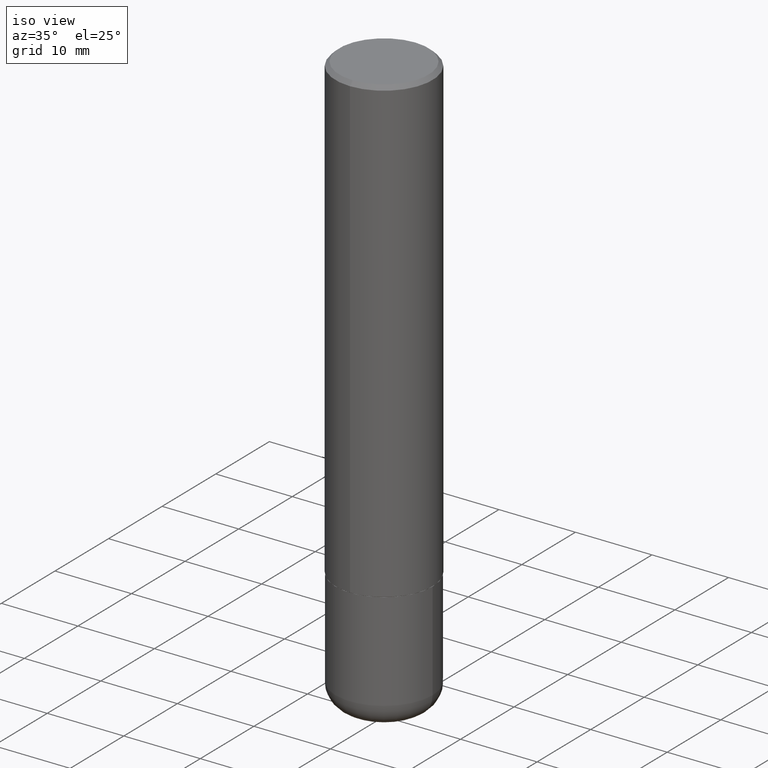
[diagram: clean part render]
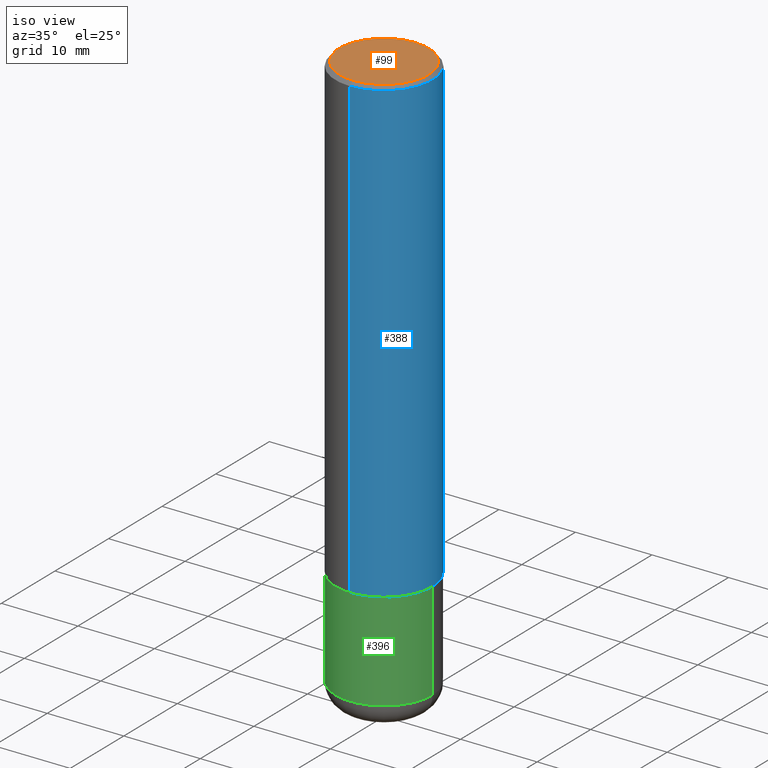
[diagram: same view with three faces highlighted in distinct colors, each labeled with its STEP entity id]
A machine part, iso view with three faces highlighted in distinct colors.
Their STEP definitions:

[orange] entity #99 — the highlighted planar face has unit normal (0, -0, -1).
#5 = CARTESIAN_POINT ( 'NONE',  ( -3.025389942482403152E-45, 4.318531852026494479E-31, 1.237009085162692923E-16 ) ) ;
#10 = CIRCLE ( 'NONE', #218, 0.2299999999999998712 ) ;
#39 = CARTESIAN_POINT ( 'NONE',  ( 1.675911042644703577E-15, 0.2299999999999998712, -6.792538457210110194E-16 ) ) ;
#45 = VERTEX_POINT ( 'NONE', #75 ) ;
#49 = EDGE_CURVE ( 'NONE', #82, #45, #132, .T. ) ;
#59 = CARTESIAN_POINT ( 'NONE',  ( -3.025389942482403152E-45, 4.318531852026494479E-31, 1.237009085162692923E-16 ) ) ;
#75 = CARTESIAN_POINT ( 'NONE',  ( -1.646519519465166573E-15, -0.2299999999999998712, 9.266556627535495054E-16 ) ) ;
#78 = DIRECTION ( 'NONE',  ( 2.445729767687598898E-29, -3.491107627118612649E-15, -1.000000000000000000 ) ) ;
#82 = VERTEX_POINT ( 'NONE', #39 ) ;
#99 = ADVANCED_FACE ( 'NONE', ( #234 ), #105, .F. ) ;
#105 = PLANE ( 'NONE',  #346 ) ;
#132 = CIRCLE ( 'NONE', #281, 0.2299999999999998712 ) ;
#147 = ORIENTED_EDGE ( 'NONE', *, *, #49, .T. ) ;
#157 = DIRECTION ( 'NONE',  ( -2.445729767687599458E-29, 3.491107627118612255E-15, 1.000000000000000000 ) ) ;
#166 = ORIENTED_EDGE ( 'NONE', *, *, #334, .T. ) ;
#189 = DIRECTION ( 'NONE',  ( -6.982962677686265922E-15, -1.000000000000000000, 3.491107627118611860E-15 ) ) ;
#218 = AXIS2_PLACEMENT_3D ( 'NONE', #59, #157, #189 ) ;
#234 = FACE_OUTER_BOUND ( 'NONE', #240, .T. ) ;
#240 = EDGE_LOOP ( 'NONE', ( #147, #166 ) ) ;
#281 = AXIS2_PLACEMENT_3D ( 'NONE', #5, #328, #368 ) ;
#289 = DIRECTION ( 'NONE',  ( 6.982962677686265922E-15, 1.000000000000000000, -3.491107627118612649E-15 ) ) ;
#328 = DIRECTION ( 'NONE',  ( -2.445729767687599458E-29, 3.491107627118612255E-15, 1.000000000000000000 ) ) ;
#334 = EDGE_CURVE ( 'NONE', #45, #82, #10, .T. ) ;
#346 = AXIS2_PLACEMENT_3D ( 'NONE', #371, #78, #289 ) ;
#368 = DIRECTION ( 'NONE',  ( -6.982962677686265922E-15, -1.000000000000000000, 3.491107627118611860E-15 ) ) ;
#371 = CARTESIAN_POINT ( 'NONE',  ( 1.606081415867840278E-15, 0.2299999999999998712, -7.411042999791457395E-16 ) ) ;

[blue] entity #388 — the highlighted cylindrical surface (partial cylindrical patch) has radius 6.35 mm, axis along (-0, 0, 1).
#4 = DIRECTION ( 'NONE',  ( -2.445729767687599458E-29, 3.491107627118612255E-15, 1.000000000000000000 ) ) ;
#7 = CARTESIAN_POINT ( 'NONE',  ( 5.806162468490361962E-29, -8.287889506779587323E-15, -2.374000000000000110 ) ) ;
#18 = ORIENTED_EDGE ( 'NONE', *, *, #91, .T. ) ;
#33 = EDGE_LOOP ( 'NONE', ( #196, #18, #349, #153 ) ) ;
#54 = VERTEX_POINT ( 'NONE', #299 ) ;
#65 = DIRECTION ( 'NONE',  ( -2.445729767687599458E-29, 3.491107627118612649E-15, 1.000000000000000000 ) ) ;
#91 = EDGE_CURVE ( 'NONE', #163, #305, #395, .T. ) ;
#107 = DIRECTION ( 'NONE',  ( -2.445729767687599458E-29, 3.491107627118612255E-15, 1.000000000000000000 ) ) ;
#108 = CARTESIAN_POINT ( 'NONE',  ( 1.776356839400251254E-15, 0.2500000000000001110, -8.727769067796535567E-16 ) ) ;
#112 = FACE_OUTER_BOUND ( 'NONE', #33, .T. ) ;
#135 = DIRECTION ( 'NONE',  ( -6.982962677686265922E-15, -1.000000000000000000, 3.483106191921935554E-15 ) ) ;
#144 = AXIS2_PLACEMENT_3D ( 'NONE', #7, #362, #264 ) ;
#152 = EDGE_CURVE ( 'NONE', #54, #305, #399, .T. ) ;
#153 = ORIENTED_EDGE ( 'NONE', *, *, #376, .F. ) ;
#163 = VERTEX_POINT ( 'NONE', #172 ) ;
#168 = CARTESIAN_POINT ( 'NONE',  ( 4.891459535375212615E-31, -6.982215254237243146E-17, -0.02000000000000005593 ) ) ;
#172 = CARTESIAN_POINT ( 'NONE',  ( 1.776356839400280836E-15, 0.2499999999999919786, -2.374000000000000998 ) ) ;
#196 = ORIENTED_EDGE ( 'NONE', *, *, #213, .T. ) ;
#207 = CYLINDRICAL_SURFACE ( 'NONE', #243, 0.2500000000000001110 ) ;
#208 = VECTOR ( 'NONE', #65, 39.37007874015748143 ) ;
#213 = EDGE_CURVE ( 'NONE', #244, #163, #390, .T. ) ;
#214 = AXIS2_PLACEMENT_3D ( 'NONE', #168, #4, #135 ) ;
#222 = LINE ( 'NONE', #354, #208 ) ;
#243 = AXIS2_PLACEMENT_3D ( 'NONE', #339, #107, #263 ) ;
#244 = VERTEX_POINT ( 'NONE', #361 ) ;
#250 = CARTESIAN_POINT ( 'NONE',  ( 1.745740669421566875E-15, 0.2499999999999999167, -0.02000000000000092676 ) ) ;
#263 = DIRECTION ( 'NONE',  ( -6.982962677686266711E-15, -1.000000000000000000, 3.491107627118612649E-15 ) ) ;
#264 = DIRECTION ( 'NONE',  ( -6.982962677686265922E-15, -1.000000000000000000, 3.278217592397112312E-15 ) ) ;
#293 = DIRECTION ( 'NONE',  ( -2.445729767687599458E-29, 3.491107627118612649E-15, 1.000000000000000000 ) ) ;
#299 = CARTESIAN_POINT ( 'NONE',  ( -1.715124499442882299E-15, -0.2500000000000000555, -0.01999999999999918510 ) ) ;
#305 = VERTEX_POINT ( 'NONE', #250 ) ;
#339 = CARTESIAN_POINT ( 'NONE',  ( 0.000000000000000000, 0.000000000000000000, 0.000000000000000000 ) ) ;
#349 = ORIENTED_EDGE ( 'NONE', *, *, #152, .F. ) ;
#354 = CARTESIAN_POINT ( 'NONE',  ( -1.745740669421567467E-15, -0.2500000000000001110, 8.727769067796535567E-16 ) ) ;
#361 = CARTESIAN_POINT ( 'NONE',  ( -1.745740669421510471E-15, -0.2500000000000085487, -2.373999999999999222 ) ) ;
#362 = DIRECTION ( 'NONE',  ( -2.445729767687599458E-29, 3.491107627118612255E-15, 1.000000000000000000 ) ) ;
#376 = EDGE_CURVE ( 'NONE', #244, #54, #222, .T. ) ;
#380 = VECTOR ( 'NONE', #293, 39.37007874015748143 ) ;
#388 = ADVANCED_FACE ( 'NONE', ( #112 ), #207, .T. ) ;
#390 = CIRCLE ( 'NONE', #144, 0.2500000000000002776 ) ;
#395 = LINE ( 'NONE', #108, #380 ) ;
#399 = CIRCLE ( 'NONE', #214, 0.2500000000000000000 ) ;

[green] entity #396 — the highlighted cylindrical surface (partial cylindrical patch) has radius 6.35 mm, axis along (-0, 0, 1).
#13 = CARTESIAN_POINT ( 'NONE',  ( 0.000000000000000000, 0.000000000000000000, 0.000000000000000000 ) ) ;
#21 = VERTEX_POINT ( 'NONE', #126 ) ;
#24 = DIRECTION ( 'NONE',  ( 1.000000000000000000, -6.982962677686266711E-15, 0.000000000000000000 ) ) ;
#31 = ORIENTED_EDGE ( 'NONE', *, *, #109, .T. ) ;
#67 = DIRECTION ( 'NONE',  ( -2.445468806185136877E-29, 3.491481338843145188E-15, 1.000000000000000000 ) ) ;
#94 = VERTEX_POINT ( 'NONE', #103 ) ;
#103 = CARTESIAN_POINT ( 'NONE',  ( -0.2500000000000000000, -7.397510378410116032E-15, -2.375000000000000000 ) ) ;
#109 = EDGE_CURVE ( 'NONE', #21, #415, #231, .T. ) ;
#126 = CARTESIAN_POINT ( 'NONE',  ( 0.2499999999999999722, -1.180120692528982640E-14, -2.880000000000000338 ) ) ;
#129 = CARTESIAN_POINT ( 'NONE',  ( -0.2500000000000000000, 1.776356839400250465E-15, -1.229733772563726445E-29 ) ) ;
#137 = CYLINDRICAL_SURFACE ( 'NONE', #266, 0.2500000000000000000 ) ;
#140 = AXIS2_PLACEMENT_3D ( 'NONE', #350, #252, #313 ) ;
#160 = VECTOR ( 'NONE', #67, 39.37007874015748143 ) ;
#161 = VECTOR ( 'NONE', #365, 39.37007874015748143 ) ;
#176 = EDGE_LOOP ( 'NONE', ( #180, #270, #31, #185 ) ) ;
#180 = ORIENTED_EDGE ( 'NONE', *, *, #275, .F. ) ;
#185 = ORIENTED_EDGE ( 'NONE', *, *, #290, .F. ) ;
#197 = DIRECTION ( 'NONE',  ( -2.445468806185136597E-29, 3.491481338843145583E-15, 1.000000000000000000 ) ) ;
#212 = AXIS2_PLACEMENT_3D ( 'NONE', #255, #197, #24 ) ;
#231 = LINE ( 'NONE', #360, #161 ) ;
#252 = DIRECTION ( 'NONE',  ( -2.445468806185136597E-29, 3.491481338843145583E-15, 1.000000000000000000 ) ) ;
#255 = CARTESIAN_POINT ( 'NONE',  ( 5.807988414689700538E-29, -8.292268179752471696E-15, -2.375000000000000000 ) ) ;
#266 = AXIS2_PLACEMENT_3D ( 'NONE', #13, #394, #292 ) ;
#270 = ORIENTED_EDGE ( 'NONE', *, *, #316, .T. ) ;
#275 = EDGE_CURVE ( 'NONE', #345, #94, #283, .T. ) ;
#283 = LINE ( 'NONE', #129, #160 ) ;
#290 = EDGE_CURVE ( 'NONE', #94, #415, #364, .T. ) ;
#292 = DIRECTION ( 'NONE',  ( 1.000000000000000000, -6.982962677686266711E-15, 4.876176775795935793E-29 ) ) ;
#302 = CARTESIAN_POINT ( 'NONE',  ( 0.2500000000000000000, -1.003800884917403837E-14, -2.375000000000000000 ) ) ;
#313 = DIRECTION ( 'NONE',  ( 1.000000000000000000, -6.982962677686262766E-15, 0.000000000000000000 ) ) ;
#314 = CARTESIAN_POINT ( 'NONE',  ( -0.2499999999999999722, -8.279109416468010833E-15, -2.880000000000000338 ) ) ;
#316 = EDGE_CURVE ( 'NONE', #345, #21, #318, .T. ) ;
#318 = CIRCLE ( 'NONE', #140, 0.2500000000000000000 ) ;
#345 = VERTEX_POINT ( 'NONE', #314 ) ;
#350 = CARTESIAN_POINT ( 'NONE',  ( 7.042950161813194609E-29, -1.005546625586826130E-14, -2.880000000000000338 ) ) ;
#360 = CARTESIAN_POINT ( 'NONE',  ( 0.2500000000000000000, -1.745740669421566678E-15, 1.219044193948983948E-29 ) ) ;
#364 = CIRCLE ( 'NONE', #212, 0.2500000000000000000 ) ;
#365 = DIRECTION ( 'NONE',  ( -2.445468806185136877E-29, 3.491481338843145188E-15, 1.000000000000000000 ) ) ;
#367 = FACE_OUTER_BOUND ( 'NONE', #176, .T. ) ;
#394 = DIRECTION ( 'NONE',  ( -2.445468806185136597E-29, 3.491481338843145583E-15, 1.000000000000000000 ) ) ;
#396 = ADVANCED_FACE ( 'NONE', ( #367 ), #137, .T. ) ;
#415 = VERTEX_POINT ( 'NONE', #302 ) ;